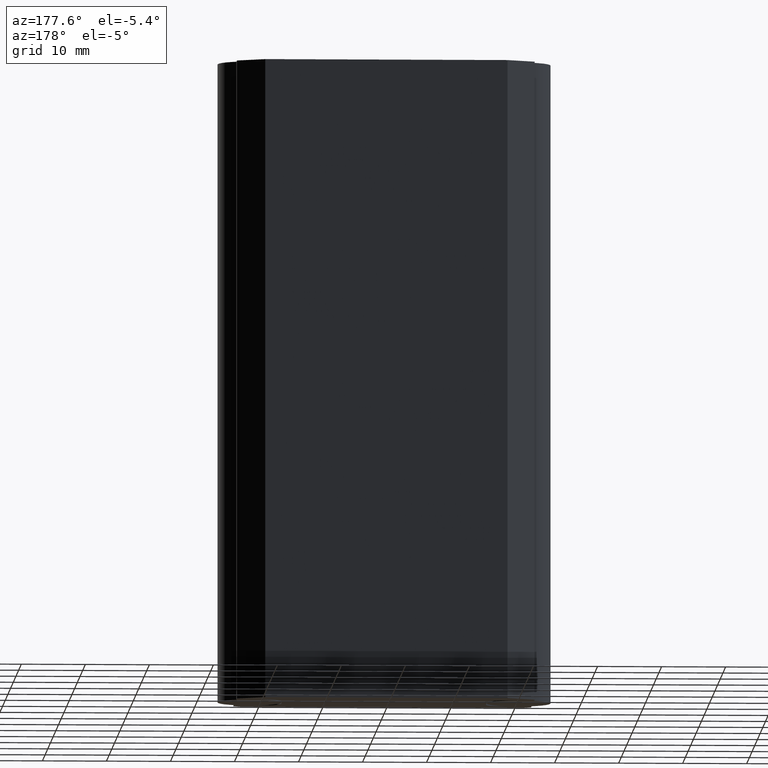
[diagram: clean part render]
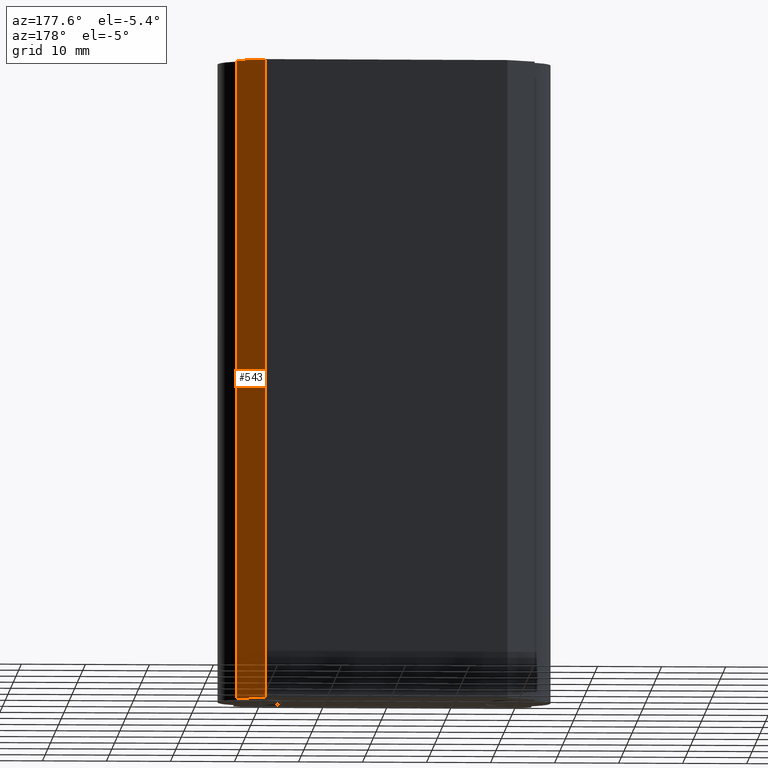
[diagram: same view with one face highlighted and labeled with its STEP entity id]
A machine part, auxiliary view. The second image highlights one B-rep face of the part: STEP entity #543.
In plain terms, the highlighted planar face has unit normal (0.5, 0.866, 0).
Its self-contained STEP definition (entity closure, byte-faithful):
#58=FACE_OUTER_BOUND('',#87,.T.);
#87=EDGE_LOOP('',(#447,#448,#449,#450));
#110=LINE('',#875,#167);
#143=LINE('',#954,#200);
#144=LINE('',#957,#201);
#145=LINE('',#958,#202);
#167=VECTOR('',#701,10.);
#200=VECTOR('',#782,10.);
#201=VECTOR('',#785,10.);
#202=VECTOR('',#786,10.);
#248=VERTEX_POINT('',#872);
#249=VERTEX_POINT('',#874);
#271=VERTEX_POINT('',#952);
#272=VERTEX_POINT('',#956);
#298=EDGE_CURVE('',#248,#249,#110,.T.);
#338=EDGE_CURVE('',#271,#248,#143,.T.);
#339=EDGE_CURVE('',#272,#271,#144,.T.);
#340=EDGE_CURVE('',#272,#249,#145,.T.);
#447=ORIENTED_EDGE('',*,*,#338,.F.);
#448=ORIENTED_EDGE('',*,*,#339,.F.);
#449=ORIENTED_EDGE('',*,*,#340,.T.);
#450=ORIENTED_EDGE('',*,*,#298,.F.);
#518=PLANE('',#651);
#543=ADVANCED_FACE('',(#58),#518,.T.);
#651=AXIS2_PLACEMENT_3D('',#955,#783,#784);
#701=DIRECTION('',(0.866025403783343,-0.500000000001898,0.));
#782=DIRECTION('',(0.,0.,-1.));
#783=DIRECTION('center_axis',(0.500000000001898,0.866025403783343,0.));
#784=DIRECTION('ref_axis',(-0.866025403783343,0.500000000001898,0.));
#785=DIRECTION('',(-0.866025403783343,0.500000000001898,0.));
#786=DIRECTION('',(0.,0.,-1.));
#872=CARTESIAN_POINT('',(18.9198729809177,8.99999999992076,-50.));
#874=CARTESIAN_POINT('',(23.249999999818,6.49999999992076,-50.));
#875=CARTESIAN_POINT('',(18.9198729809177,8.99999999992076,-50.));
#952=CARTESIAN_POINT('',(18.9198729809177,8.99999999992076,50.));
#954=CARTESIAN_POINT('',(18.9198729809177,8.99999999992076,0.));
#955=CARTESIAN_POINT('Origin',(23.249999999818,6.49999999992076,0.));
#956=CARTESIAN_POINT('',(23.249999999818,6.49999999992076,50.));
#957=CARTESIAN_POINT('',(18.9198729809177,8.99999999992076,50.));
#958=CARTESIAN_POINT('',(23.249999999818,6.49999999992076,0.));